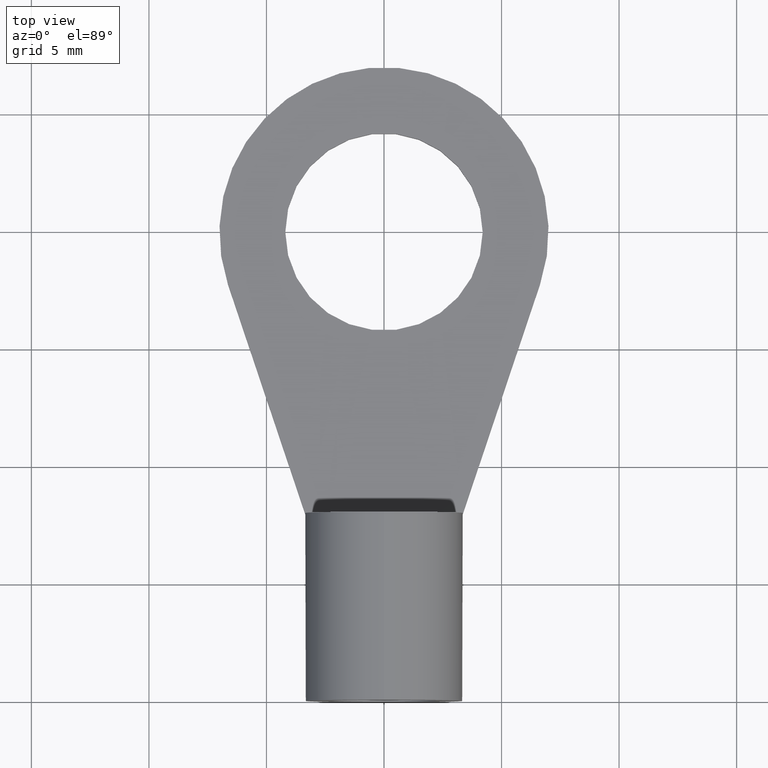
[diagram: clean part render]
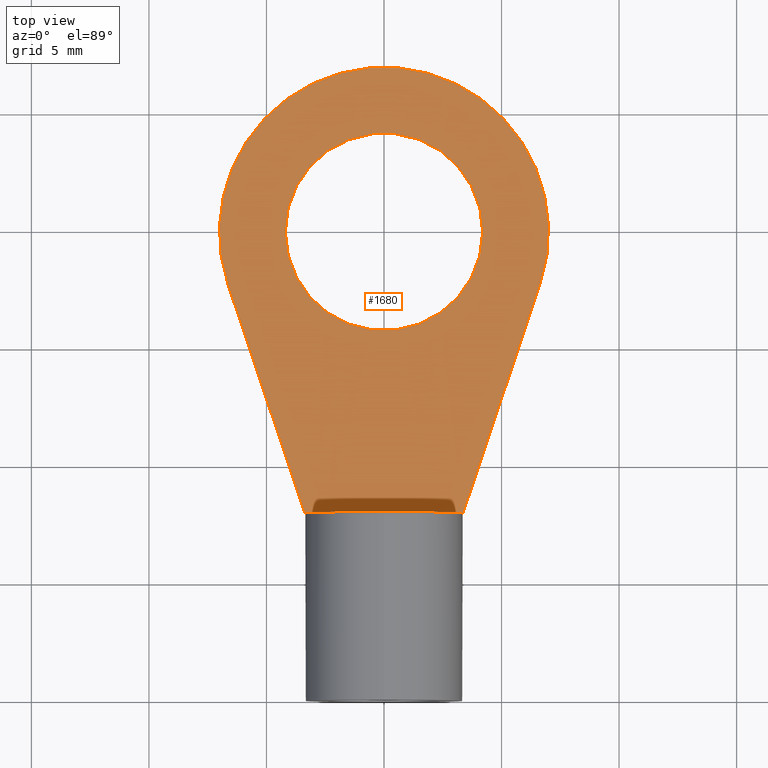
[diagram: same view with one face highlighted and labeled with its STEP entity id]
A machine part, top view. The second image highlights one B-rep face of the part: STEP entity #1680.
In plain terms, the highlighted planar face has unit normal (0, -0, -1).
Its self-contained STEP definition (entity closure, byte-faithful):
#120=CARTESIAN_POINT('',(8.19005202616465,214.078451637348,
127.110088386893));
#130=VERTEX_POINT('',#120);
#160=CARTESIAN_POINT('',(7.55918008076447,209.986141658308,
126.406526290164));
#170=DIRECTION('',(-5.91634389396356E-9,0.169437138749457,
-0.985540996616781));
#180=DIRECTION('',(0.150207606047662,0.974359518819137,0.167514784935453
));
#190=AXIS2_PLACEMENT_3D('',#160,#170,#180);
#200=CIRCLE('',#190,4.2);
#210=CARTESIAN_POINT('',(6.92830813536429,205.893831679267,
125.702964193435));
#220=VERTEX_POINT('',#210);
#230=EDGE_CURVE('',#220,#130,#200,.T.);
#1070=CARTESIAN_POINT('',(7.72299772260922,212.262650596853,
126.797910475337));
#1080=DIRECTION('',(5.91634389036865E-9,-0.169437138749457,
0.985540996616781));
#1090=DIRECTION('',(1.,5.42947597823552E-9,-5.06969170522524E-9));
#1100=AXIS2_PLACEMENT_3D('',#1070,#1080,#1090);
#1110=PLANE('',#1100);
#1120=CARTESIAN_POINT('',(0.,215.683709738163,127.386069182157));
#1130=DIRECTION('',(-0.984968130986959,-0.170238568175705,
-0.0292679149503728));
#1140=VECTOR('',#1130,1.);
#1150=LINE('',#1120,#1140);
#1160=CARTESIAN_POINT('',(6.35002696140251,216.781226971236,
127.574757570331));
#1170=VERTEX_POINT('',#1160);
#1180=CARTESIAN_POINT('',(-3.80147816414881,215.026675079622,
127.273109852719));
#1190=VERTEX_POINT('',#1180);
#1200=EDGE_CURVE('',#1170,#1190,#1150,.T.);
#1210=ORIENTED_EDGE('',*,*,#1200,.F.);
#1220=CARTESIAN_POINT('',(-36.9500660070076,0.,90.3050846673102));
#1230=DIRECTION('',(-0.150207606047676,-0.974359518819134,
-0.167514784935453));
#1240=VECTOR('',#1230,1.);
#1250=LINE('',#1220,#1240);
#1260=CARTESIAN_POINT('',(-3.93186817036907,214.180867420061,
127.127696085571));
#1270=VERTEX_POINT('',#1260);
#1280=EDGE_CURVE('',#1190,#1270,#1250,.T.);
#1290=ORIENTED_EDGE('',*,*,#1280,.F.);
#1300=CARTESIAN_POINT('',(-36.9500660070076,0.,90.3050846673102));
#1310=DIRECTION('',(-0.150207606047676,-0.974359518819134,
-0.167514784935453));
#1320=VECTOR('',#1310,1.);
#1330=LINE('',#1300,#1320);
#1340=CARTESIAN_POINT('',(-4.30467364440851,211.762570691579,
126.711935323185));
#1350=VERTEX_POINT('',#1340);
#1360=EDGE_CURVE('',#1270,#1350,#1330,.T.);
#1370=ORIENTED_EDGE('',*,*,#1360,.F.);
#1380=CARTESIAN_POINT('',(-4.67747911844793,209.344273963097,
126.2961745608));
#1390=VERTEX_POINT('',#1380);
#1400=EDGE_CURVE('',#1350,#1390,#1330,.T.);
#1410=ORIENTED_EDGE('',*,*,#1400,.F.);
#1420=CARTESIAN_POINT('',(-4.80786912466824,208.498466303534,
126.150760793651));
#1430=VERTEX_POINT('',#1420);
#1440=EDGE_CURVE('',#1390,#1430,#1250,.T.);
#1450=ORIENTED_EDGE('',*,*,#1440,.F.);
#1460=CARTESIAN_POINT('',(0.,206.060684671565,125.731650097618));
#1470=DIRECTION('',(0.889217967210451,-0.450869017245236,
-0.0775147474899381));
#1480=VECTOR('',#1470,1.);
#1490=LINE('',#1460,#1480);
#1500=CARTESIAN_POINT('',(4.35679363738893,203.851616323798,
125.351860472215));
#1510=VERTEX_POINT('',#1500);
#1520=EDGE_CURVE('',#1430,#1510,#1490,.T.);
#1530=ORIENTED_EDGE('',*,*,#1520,.F.);
#1540=CARTESIAN_POINT('',(7.55918008076447,209.986141658308,
126.406526290164));
#1550=DIRECTION('',(-5.91634389571428E-9,0.169437138749457,
-0.985540996616781));
#1560=DIRECTION('',(1.,5.42947599304575E-9,-5.06969170810309E-9));
#1570=AXIS2_PLACEMENT_3D('',#1540,#1550,#1560);
#1580=CIRCLE('',#1570,7.);
#1590=EDGE_CURVE('',#1170,#1510,#1580,.T.);
#1600=ORIENTED_EDGE('',*,*,#1590,.T.);
#1610=EDGE_LOOP('',(#1600,#1530,#1450,#1410,#1370,#1290,#1210));
#1620=FACE_OUTER_BOUND('',#1610,.T.);
#1630=EDGE_CURVE('',#130,#220,#200,.T.);
#1640=ORIENTED_EDGE('',*,*,#1630,.F.);
#1650=ORIENTED_EDGE('',*,*,#230,.F.);
#1660=EDGE_LOOP('',(#1650,#1640));
#1670=FACE_BOUND('',#1660,.T.);
#1680=ADVANCED_FACE('',(#1620,#1670),#1110,.F.);